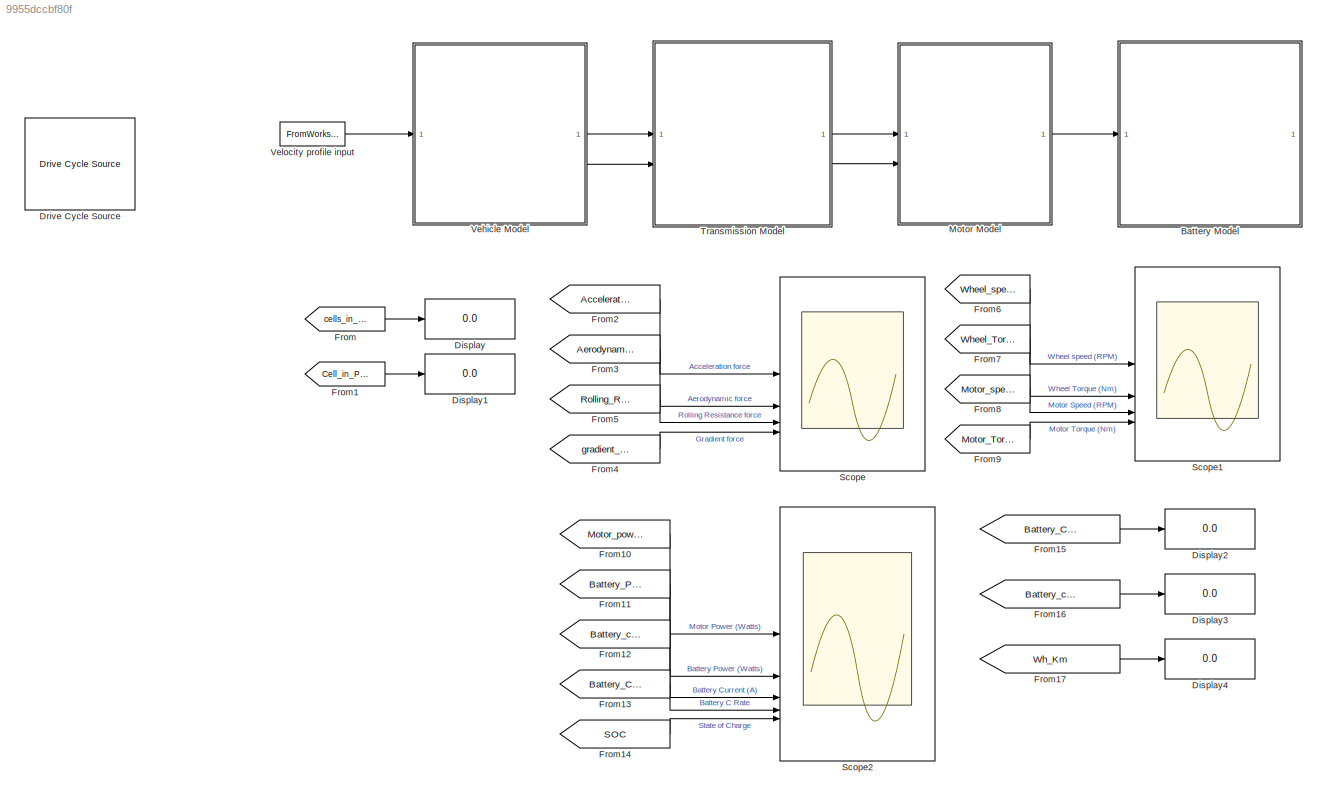
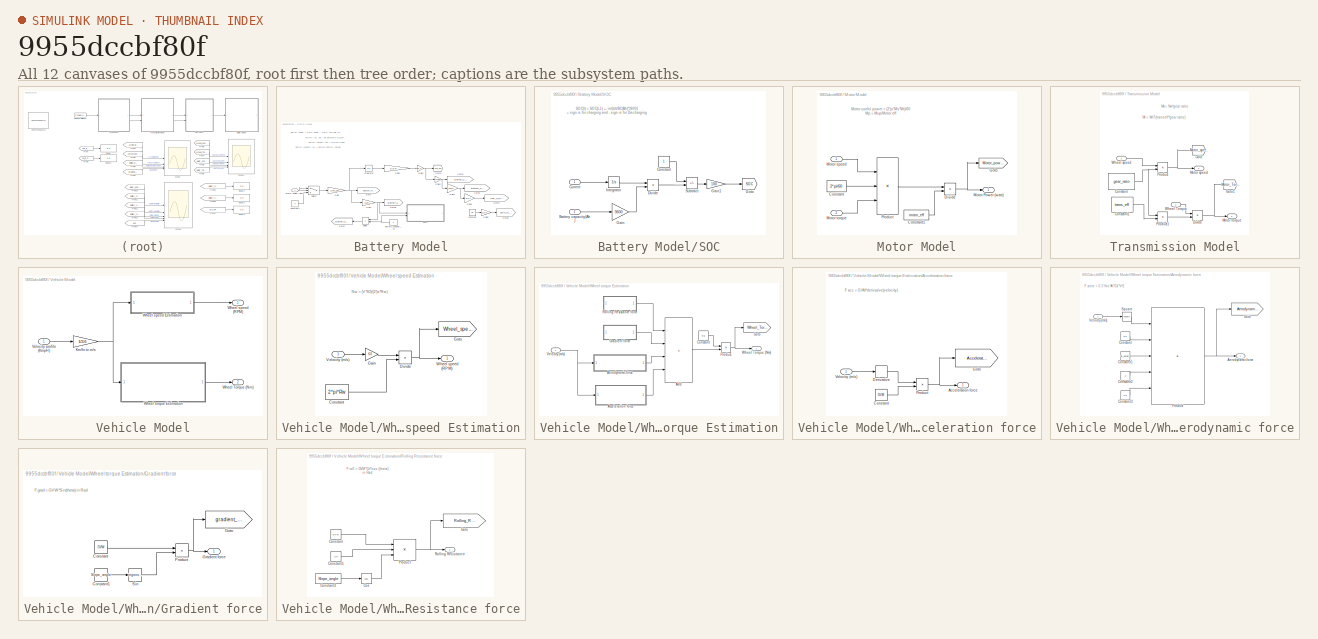
[diagram: thumbnail index - all 12 canvases of the model, root first then tree order]
MODEL slx_9955dccbf80f
KIND model
CONFIG AbsTol = auto
CONFIG EnableMultiTasking = off
CONFIG FixedStep = auto
CONFIG MaxStep = auto
CONFIG MinStep = auto
CONFIG RelTol = 1e-3
CONFIG SampleTimeConstraint = Unconstrained
CONFIG SolverName = VariableStepAuto
CONFIG StartTime = 0
CONFIG StopTime = 1372
WORKSPACE source: MATLAB code (in-file)
WORKSPACE Rw = 0.254
WORKSPACE GVM = 330
WORKSPACE GVW = GVM*9.81  (= 3237.3)
WORKSPACE Crf = 0.015
WORKSPACE Slope_angle = 0
WORKSPACE Af = 1.1
WORKSPACE Cd = 0.4
WORKSPACE gear_ratio = 6
WORKSPACE trans_eff = 0.9
WORKSPACE motor_eff = 0.9
WORKSPACE mc_eff = 0.95
WORKSPACE Bv = 72
WORKSPACE Cv = 3.6
WORKSPACE Cc = 31
WORKSPACE lap_distance = 17.77
WORKSPACE range = 20
WORKSPACE time = 60
WORKSPACE air_density = 1.225
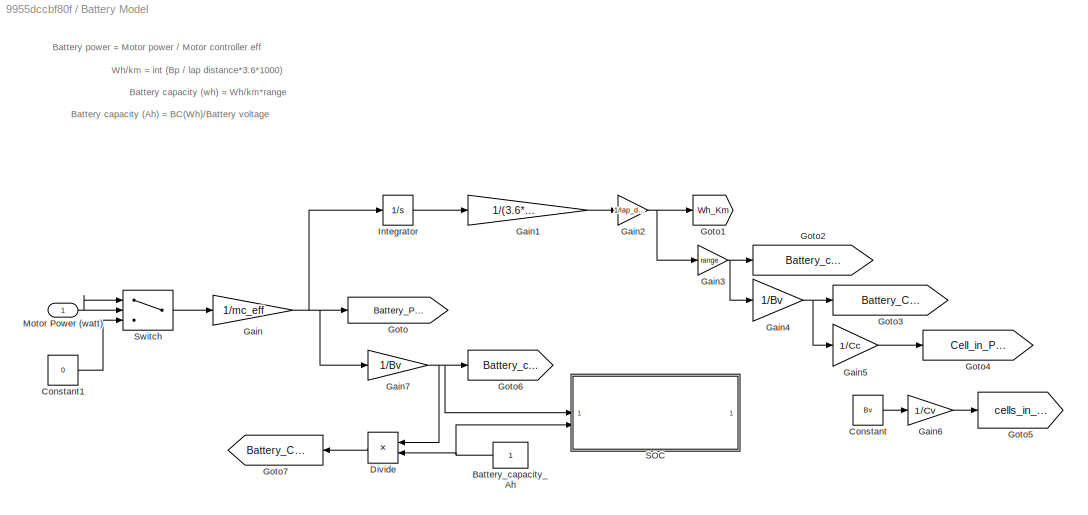
BLOCK [SubSystem] Battery Model
BLOCK [Constant] Battery Model/Battery_capacity_Ah
BLOCK [Constant] Battery Model/Constant
  Value = Bv
BLOCK [Constant] Battery Model/Constant1
  Value = 0
BLOCK [Product] Battery Model/Divide
  Inputs = */
BLOCK [Gain] Battery Model/Gain
  Gain = 1/mc_eff
BLOCK [Gain] Battery Model/Gain1
  Gain = 1/(3.6*1000)
BLOCK [Gain] Battery Model/Gain2
  Gain = 1/lap_distance
BLOCK [Gain] Battery Model/Gain3
  Gain = range
BLOCK [Gain] Battery Model/Gain4
  Gain = 1/Bv
BLOCK [Gain] Battery Model/Gain5
  Gain = 1/Cc
BLOCK [Gain] Battery Model/Gain6
  Gain = 1/Cv
BLOCK [Gain] Battery Model/Gain7
  Gain = 1/Bv
BLOCK [Goto] Battery Model/Goto
  GotoTag = Battery_Power
  TagVisibility = global
BLOCK [Goto] Battery Model/Goto1
  GotoTag = Wh_Km
  TagVisibility = global
BLOCK [Goto] Battery Model/Goto2
  GotoTag = Battery_capacity_Wh
  TagVisibility = global
BLOCK [Goto] Battery Model/Goto3
  GotoTag = Battery_Capacity_Ah
  TagVisibility = global
BLOCK [Goto] Battery Model/Goto4
  GotoTag = Cell_in_Parallel
  TagVisibility = global
BLOCK [Goto] Battery Model/Goto5
  GotoTag = cells_in_series
  TagVisibility = global
BLOCK [Goto] Battery Model/Goto6
  GotoTag = Battery_current
  TagVisibility = global
BLOCK [Goto] Battery Model/Goto7
  GotoTag = Battery_C_Rate
  TagVisibility = global
BLOCK [Integrator] Battery Model/Integrator
BLOCK [Inport] Battery Model/Motor Power (watt)
BLOCK [SubSystem] Battery Model/SOC
BLOCK [Inport] Battery Model/SOC/Battery capacity(Ah)
  Port = 2
BLOCK [Constant] Battery Model/SOC/Constant
BLOCK [Inport] Battery Model/SOC/Current
BLOCK [Product] Battery Model/SOC/Divide
  Inputs = */
BLOCK [Gain] Battery Model/SOC/Gain
  Gain = 3600
BLOCK [Gain] Battery Model/SOC/Gain1
  Gain = 100
BLOCK [Goto] Battery Model/SOC/Goto
  GotoTag = SOC
  TagVisibility = global
BLOCK [Integrator] Battery Model/SOC/Integrator
BLOCK [Sum] Battery Model/SOC/Subtract
  IconShape = rectangular
  Inputs = +-
BLOCK [Switch] Battery Model/Switch
  Criteria = u2 > Threshold
  InputSameDT = off
  SaturateOnIntegerOverflow = off
BLOCK [Display] Display
  Decimation = 2
BLOCK [Display] Display1
  Decimation = 2
BLOCK [Display] Display2
  Decimation = 2
BLOCK [Display] Display3
  Decimation = 2
BLOCK [Display] Display4
  Decimation = 2
BLOCK [Reference] Drive Cycle Source  REF=autolibshared/Drive Cycle Source
  AttributesFormatString = %<cycleVar> (%<tfinal>)
  LibrarySourceBlock = vdynlib/Vehicle Scenarios/Drive Cycle and Maneuvers/Drive Cycle Source
  SourceBlock = autolibshared/Drive Cycle Source
  SourceType = Drive Cycle Source
BLOCK [From] From
  GotoTag = cells_in_series
  TagVisibility = global
BLOCK [From] From1
  GotoTag = Cell_in_Parallel
  TagVisibility = global
BLOCK [From] From10
  GotoTag = Motor_power
  TagVisibility = global
BLOCK [From] From11
  GotoTag = Battery_Power
  TagVisibility = global
BLOCK [From] From12
  GotoTag = Battery_current
  TagVisibility = global
BLOCK [From] From13
  GotoTag = Battery_C_Rate
  TagVisibility = global
BLOCK [From] From14
  GotoTag = SOC
  TagVisibility = global
BLOCK [From] From15
  GotoTag = Battery_Capacity_Ah
  TagVisibility = global
BLOCK [From] From16
  GotoTag = Battery_capacity_Wh
  TagVisibility = global
BLOCK [From] From17
  GotoTag = Wh_Km
  TagVisibility = global
BLOCK [From] From2
  GotoTag = Acceleration_force
  TagVisibility = global
BLOCK [From] From3
  GotoTag = Aerodynamic_force
  TagVisibility = global
BLOCK [From] From4
  GotoTag = gradient_force
  TagVisibility = global
BLOCK [From] From5
  GotoTag = Rolling_Resistance
  TagVisibility = global
BLOCK [From] From6
  GotoTag = Wheel_speed
  TagVisibility = global
BLOCK [From] From7
  GotoTag = Wheel_Torque
  TagVisibility = global
BLOCK [From] From8
  GotoTag = Motor_speed
  TagVisibility = global
BLOCK [From] From9
  GotoTag = Motor_Torque
  TagVisibility = global
BLOCK [SubSystem] Motor Model
BLOCK [Constant] Motor Model/Constant
  Value = 2*pi/60
BLOCK [Constant] Motor Model/Constant1
  Value = motor_eff
BLOCK [Product] Motor Model/Divide
  Inputs = */
BLOCK [Goto] Motor Model/Goto
  GotoTag = Motor_power
  TagVisibility = global
BLOCK [Outport] Motor Model/Motor Power (watt)
BLOCK [Inport] Motor Model/Motor speed
BLOCK [Inport] Motor Model/Motor torque
  Port = 2
BLOCK [Product] Motor Model/Product
  Inputs = 3
BLOCK [Scope] Scope
  Floating = off
  NumInputPorts = 4
  ScopeSpecificationString = Simulink.scopes.TimeScopeBlockCfg('CurrentConfiguration', extmgr.ConfigurationSet(extmgr.Configuration('Core','General UI',true),extmgr.Configuration('Core','Source UI',true),extmgr.Configuration('Sources','WiredSimulink',true),extmgr.Configuration('Visuals','Time Domain',true,'SerializedDisplays',{struct('MinYLimReal','-378.125','MaxYLimReal','378.125','YLabelReal','','MinYLimMag',' 0.00000','Max...<+3351ch>
BLOCK [Scope] Scope1
  Floating = off
  NumInputPorts = 4
  ScopeSpecificationString = Simulink.scopes.TimeScopeBlockCfg('CurrentConfiguration', extmgr.ConfigurationSet(extmgr.Configuration('Core','General UI',true),extmgr.Configuration('Core','Source UI',true),extmgr.Configuration('Sources','WiredSimulink',true,'DataLoggingVariableName','ScopeData1'),extmgr.Configuration('Visuals','Time Domain',true,'SerializedDisplays',{struct('MinYLimReal','-10','MaxYLimReal','10','YLabelReal',''...<+3450ch>
BLOCK [Scope] Scope2
  Floating = off
  NumInputPorts = 5
  ScopeSpecificationString = Simulink.scopes.TimeScopeBlockCfg('CurrentConfiguration', extmgr.ConfigurationSet(extmgr.Configuration('Core','General UI',true),extmgr.Configuration('Core','Source UI',true),extmgr.Configuration('Sources','WiredSimulink',true,'DataLoggingVariableName','ScopeData2'),extmgr.Configuration('Visuals','Time Domain',true,'SerializedDisplays',{struct('MinYLimReal','-3120.5989','MaxYLimReal','4806.34832',...<+4835ch>
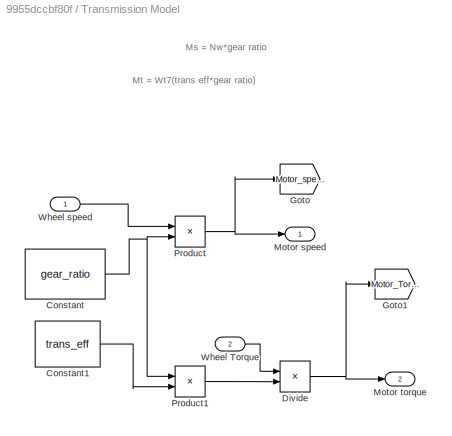
BLOCK [SubSystem] Transmission Model
BLOCK [Constant] Transmission Model/Constant
  Value = gear_ratio
BLOCK [Constant] Transmission Model/Constant1
  Value = trans_eff
BLOCK [Product] Transmission Model/Divide
  Inputs = */
BLOCK [Goto] Transmission Model/Goto
  GotoTag = Motor_speed
  TagVisibility = global
BLOCK [Goto] Transmission Model/Goto1
  GotoTag = Motor_Torque
  TagVisibility = global
BLOCK [Outport] Transmission Model/Motor speed
BLOCK [Outport] Transmission Model/Motor torque 
  Port = 2
BLOCK [Product] Transmission Model/Product
BLOCK [Product] Transmission Model/Product1
BLOCK [Inport] Transmission Model/Wheel Torque
  Port = 2
BLOCK [Inport] Transmission Model/Wheel speed
BLOCK [SubSystem] Vehicle Model
BLOCK [Gain] Vehicle Model/Km//hr to m//s
  Gain = 1/3.6
BLOCK [Inport] Vehicle Model/Velocity profile (KmpH)
BLOCK [Outport] Vehicle Model/Wheel Torque (Nm)
  Port = 2
BLOCK [Outport] Vehicle Model/Wheel speed (RPM)
BLOCK [SubSystem] Vehicle Model/Wheel speed Estimation
BLOCK [Constant] Vehicle Model/Wheel speed Estimation/Constant
  Value = 2*pi*Rw
BLOCK [Product] Vehicle Model/Wheel speed Estimation/Divide
  Inputs = */
BLOCK [Gain] Vehicle Model/Wheel speed Estimation/Gain
  Gain = 60
BLOCK [Goto] Vehicle Model/Wheel speed Estimation/Goto
  GotoTag = Wheel_speed
  TagVisibility = global
BLOCK [Inport] Vehicle Model/Wheel speed Estimation/Velocity (m//s)
BLOCK [Outport] Vehicle Model/Wheel speed Estimation/Wheel speed (RPM)
BLOCK [SubSystem] Vehicle Model/Wheel torque Estimation
BLOCK [SubSystem] Vehicle Model/Wheel torque Estimation/Acceleration force
BLOCK [Outport] Vehicle Model/Wheel torque Estimation/Acceleration force/Acceleration force
BLOCK [Constant] Vehicle Model/Wheel torque Estimation/Acceleration force/Constant
  Value = GVM
BLOCK [Derivative] Vehicle Model/Wheel torque Estimation/Acceleration force/Derivative
BLOCK [Goto] Vehicle Model/Wheel torque Estimation/Acceleration force/Goto
  GotoTag = Acceleration_force
  TagVisibility = global
BLOCK [Product] Vehicle Model/Wheel torque Estimation/Acceleration force/Product
BLOCK [Inport] Vehicle Model/Wheel torque Estimation/Acceleration force/Velocity (m//s)
BLOCK [Sum] Vehicle Model/Wheel torque Estimation/Add
  IconShape = rectangular
  Inputs = ++++
BLOCK [SubSystem] Vehicle Model/Wheel torque Estimation/Aerodynamic force
BLOCK [Outport] Vehicle Model/Wheel torque Estimation/Aerodynamic force/Aerodynamic force
BLOCK [Constant] Vehicle Model/Wheel torque Estimation/Aerodynamic force/Constant
  Value = 0.5
BLOCK [Constant] Vehicle Model/Wheel torque Estimation/Aerodynamic force/Constant1
  Value = air_density
BLOCK [Constant] Vehicle Model/Wheel torque Estimation/Aerodynamic force/Constant2
  Value = Af
BLOCK [Constant] Vehicle Model/Wheel torque Estimation/Aerodynamic force/Constant3
  Value = Cd
BLOCK [Goto] Vehicle Model/Wheel torque Estimation/Aerodynamic force/Goto
  GotoTag = Aerodynamic_force
  TagVisibility = global
BLOCK [Product] Vehicle Model/Wheel torque Estimation/Aerodynamic force/Product
  Inputs = 5
BLOCK [Math] Vehicle Model/Wheel torque Estimation/Aerodynamic force/Square
  Operator = square
BLOCK [Inport] Vehicle Model/Wheel torque Estimation/Aerodynamic force/Velocity (m//s)
BLOCK [Constant] Vehicle Model/Wheel torque Estimation/Constant
  Value = Rw
BLOCK [Goto] Vehicle Model/Wheel torque Estimation/Goto
  GotoTag = Wheel_Torque
  TagVisibility = global
BLOCK [SubSystem] Vehicle Model/Wheel torque Estimation/Gradient force
BLOCK [Constant] Vehicle Model/Wheel torque Estimation/Gradient force/Constant
  Value = GVW
BLOCK [Constant] Vehicle Model/Wheel torque Estimation/Gradient force/Constant1
  Value = Slope_angle
BLOCK [Goto] Vehicle Model/Wheel torque Estimation/Gradient force/Goto
  GotoTag = gradient_force
  TagVisibility = global
BLOCK [Outport] Vehicle Model/Wheel torque Estimation/Gradient force/Gradient force
BLOCK [Product] Vehicle Model/Wheel torque Estimation/Gradient force/Product
BLOCK [Trigonometry] Vehicle Model/Wheel torque Estimation/Gradient force/Sin
BLOCK [Product] Vehicle Model/Wheel torque Estimation/Product
BLOCK [SubSystem] Vehicle Model/Wheel torque Estimation/Rolling Resistance force
BLOCK [Constant] Vehicle Model/Wheel torque Estimation/Rolling Resistance force/Constant
  Value = GVW
BLOCK [Constant] Vehicle Model/Wheel torque Estimation/Rolling Resistance force/Constant1
  Value = Crf
BLOCK [Constant] Vehicle Model/Wheel torque Estimation/Rolling Resistance force/Constant2
  Value = Slope_angle
BLOCK [Trigonometry] Vehicle Model/Wheel torque Estimation/Rolling Resistance force/Cos
  Operator = cos
BLOCK [Goto] Vehicle Model/Wheel torque Estimation/Rolling Resistance force/Goto
  GotoTag = Rolling_Resistance
  TagVisibility = global
BLOCK [Product] Vehicle Model/Wheel torque Estimation/Rolling Resistance force/Product
  Inputs = 3
BLOCK [Outport] Vehicle Model/Wheel torque Estimation/Rolling Resistance force/Rolling Resistance
BLOCK [Inport] Vehicle Model/Wheel torque Estimation/Velocity (m//s)
BLOCK [Outport] Vehicle Model/Wheel torque Estimation/Wheel Torque (Nm)
BLOCK [FromWorkspace] Velocity profile input
  VariableName = UDDSdata
ANNOTATION Battery Model: Battery capacity (Ah) = BC(Wh)/Battery voltage
ANNOTATION Battery Model: Battery capacity (wh) = Wh/km*range
ANNOTATION Battery Model: Battery power = Motor power / Motor controller eff
ANNOTATION Battery Model: Wh/km = int (Bp / lap distance*3.6*1000)
ANNOTATION Battery Model/SOC: SOC(t) = SOC(t-1) +- int(Idt/BC(Ah)*3600) + sign is for charging and - sign is for Discharging
ANNOTATION Motor Model: Motor useful power = (2*pi*Ms*Mt)/60 Mp = Mup/Motor eff
ANNOTATION Transmission Model: Ms = Nw*gear ratio
ANNOTATION Transmission Model: Mt = Wt7(trans eff*gear ratio)
ANNOTATION Vehicle Model/Wheel speed Estimation: Nw = (V*60)/(2*pi*Rw)
ANNOTATION Vehicle Model/Wheel torque Estimation/Acceleration force: F acc = GVM*derivative(velocity)
ANNOTATION Vehicle Model/Wheel torque Estimation/Aerodynamic force: F aero = 0.5*rho*Af*Cd*V^2
ANNOTATION Vehicle Model/Wheel torque Estimation/Gradient force: F grad = GVW*Sin(theta) in Rad
ANNOTATION Vehicle Model/Wheel torque Estimation/Rolling Resistance force: F roll = GVM*Crf*cos (theta) in Rad
NET Battery Model/Battery_capacity_Ah:1 -> Battery Model/Divide:2, Battery Model/SOC:2
LINE Battery Model/Constant1:1 -> Battery Model/Switch:3
LINE Battery Model/Constant:1 -> Battery Model/Gain6:1
LINE Battery Model/Divide:1 -> Battery Model/Goto7:1
LINE Battery Model/Gain1:1 -> Battery Model/Gain2:1
NET Battery Model/Gain2:1 -> Battery Model/Gain3:1, Battery Model/Goto1:1
NET Battery Model/Gain3:1 -> Battery Model/Gain4:1, Battery Model/Goto2:1
NET Battery Model/Gain4:1 -> Battery Model/Gain5:1, Battery Model/Goto3:1
LINE Battery Model/Gain5:1 -> Battery Model/Goto4:1
LINE Battery Model/Gain6:1 -> Battery Model/Goto5:1
NET Battery Model/Gain7:1 -> Battery Model/Divide:1, Battery Model/Goto6:1, Battery Model/SOC:1
NET Battery Model/Gain:1 -> Battery Model/Gain7:1, Battery Model/Goto:1, Battery Model/Integrator:1
LINE Battery Model/Integrator:1 -> Battery Model/Gain1:1
NET Battery Model/Motor Power (watt):1 -> Battery Model/Switch:1, Battery Model/Switch:2
LINE Battery Model/SOC/Battery capacity(Ah):1 -> Battery Model/SOC/Gain:1
LINE Battery Model/SOC/Constant:1 -> Battery Model/SOC/Subtract:1
LINE Battery Model/SOC/Current:1 -> Battery Model/SOC/Integrator:1
LINE Battery Model/SOC/Divide:1 -> Battery Model/SOC/Subtract:2
LINE Battery Model/SOC/Gain1:1 -> Battery Model/SOC/Goto:1
LINE Battery Model/SOC/Gain:1 -> Battery Model/SOC/Divide:2
LINE Battery Model/SOC/Integrator:1 -> Battery Model/SOC/Divide:1
LINE Battery Model/SOC/Subtract:1 -> Battery Model/SOC/Gain1:1
LINE Battery Model/Switch:1 -> Battery Model/Gain:1
LINE From10:1 -> Scope2:1
LINE From11:1 -> Scope2:2
LINE From12:1 -> Scope2:3
LINE From13:1 -> Scope2:4
LINE From14:1 -> Scope2:5
LINE From15:1 -> Display2:1
LINE From16:1 -> Display3:1
LINE From17:1 -> Display4:1
LINE From1:1 -> Display1:1
LINE From2:1 -> Scope:1
LINE From3:1 -> Scope:2
LINE From4:1 -> Scope:4
LINE From5:1 -> Scope:3
LINE From6:1 -> Scope1:1
LINE From7:1 -> Scope1:2
LINE From8:1 -> Scope1:3
LINE From9:1 -> Scope1:4
LINE From:1 -> Display:1
LINE Motor Model/Constant1:1 -> Motor Model/Divide:2
LINE Motor Model/Constant:1 -> Motor Model/Product:2
NET Motor Model/Divide:1 -> Motor Model/Goto:1, Motor Model/Motor Power (watt):1
LINE Motor Model/Motor speed:1 -> Motor Model/Product:1
LINE Motor Model/Motor torque:1 -> Motor Model/Product:3
LINE Motor Model/Product:1 -> Motor Model/Divide:1
LINE Motor Model:1 -> Battery Model:1
LINE Transmission Model/Constant1:1 -> Transmission Model/Product1:2
NET Transmission Model/Constant:1 -> Transmission Model/Product1:1, Transmission Model/Product:2
NET Transmission Model/Divide:1 -> Transmission Model/Goto1:1, Transmission Model/Motor torque :1
LINE Transmission Model/Product1:1 -> Transmission Model/Divide:2
NET Transmission Model/Product:1 -> Transmission Model/Goto:1, Transmission Model/Motor speed:1
LINE Transmission Model/Wheel Torque:1 -> Transmission Model/Divide:1
LINE Transmission Model/Wheel speed:1 -> Transmission Model/Product:1
LINE Transmission Model:1 -> Motor Model:1
LINE Transmission Model:2 -> Motor Model:2
NET Vehicle Model/Km//hr to m//s:1 -> Vehicle Model/Wheel speed Estimation:1, Vehicle Model/Wheel torque Estimation:1
LINE Vehicle Model/Velocity profile (KmpH):1 -> Vehicle Model/Km//hr to m//s:1
LINE Vehicle Model/Wheel speed Estimation/Constant:1 -> Vehicle Model/Wheel speed Estimation/Divide:2
NET Vehicle Model/Wheel speed Estimation/Divide:1 -> Vehicle Model/Wheel speed Estimation/Goto:1, Vehicle Model/Wheel speed Estimation/Wheel speed (RPM):1
LINE Vehicle Model/Wheel speed Estimation/Gain:1 -> Vehicle Model/Wheel speed Estimation/Divide:1
LINE Vehicle Model/Wheel speed Estimation/Velocity (m//s):1 -> Vehicle Model/Wheel speed Estimation/Gain:1
LINE Vehicle Model/Wheel speed Estimation:1 -> Vehicle Model/Wheel speed (RPM):1
LINE Vehicle Model/Wheel torque Estimation/Acceleration force/Constant:1 -> Vehicle Model/Wheel torque Estimation/Acceleration force/Product:2
LINE Vehicle Model/Wheel torque Estimation/Acceleration force/Derivative:1 -> Vehicle Model/Wheel torque Estimation/Acceleration force/Product:1
NET Vehicle Model/Wheel torque Estimation/Acceleration force/Product:1 -> Vehicle Model/Wheel torque Estimation/Acceleration force/Acceleration force:1, Vehicle Model/Wheel torque Estimation/Acceleration force/Goto:1
LINE Vehicle Model/Wheel torque Estimation/Acceleration force/Velocity (m//s):1 -> Vehicle Model/Wheel torque Estimation/Acceleration force/Derivative:1
LINE Vehicle Model/Wheel torque Estimation/Acceleration force:1 -> Vehicle Model/Wheel torque Estimation/Add:4
LINE Vehicle Model/Wheel torque Estimation/Add:1 -> Vehicle Model/Wheel torque Estimation/Product:2
LINE Vehicle Model/Wheel torque Estimation/Aerodynamic force/Constant1:1 -> Vehicle Model/Wheel torque Estimation/Aerodynamic force/Product:3
LINE Vehicle Model/Wheel torque Estimation/Aerodynamic force/Constant2:1 -> Vehicle Model/Wheel torque Estimation/Aerodynamic force/Product:4
LINE Vehicle Model/Wheel torque Estimation/Aerodynamic force/Constant3:1 -> Vehicle Model/Wheel torque Estimation/Aerodynamic force/Product:5
LINE Vehicle Model/Wheel torque Estimation/Aerodynamic force/Constant:1 -> Vehicle Model/Wheel torque Estimation/Aerodynamic force/Product:2
NET Vehicle Model/Wheel torque Estimation/Aerodynamic force/Product:1 -> Vehicle Model/Wheel torque Estimation/Aerodynamic force/Aerodynamic force:1, Vehicle Model/Wheel torque Estimation/Aerodynamic force/Goto:1
LINE Vehicle Model/Wheel torque Estimation/Aerodynamic force/Square:1 -> Vehicle Model/Wheel torque Estimation/Aerodynamic force/Product:1
LINE Vehicle Model/Wheel torque Estimation/Aerodynamic force/Velocity (m//s):1 -> Vehicle Model/Wheel torque Estimation/Aerodynamic force/Square:1
LINE Vehicle Model/Wheel torque Estimation/Aerodynamic force:1 -> Vehicle Model/Wheel torque Estimation/Add:3
LINE Vehicle Model/Wheel torque Estimation/Constant:1 -> Vehicle Model/Wheel torque Estimation/Product:1
LINE Vehicle Model/Wheel torque Estimation/Gradient force/Constant1:1 -> Vehicle Model/Wheel torque Estimation/Gradient force/Sin:1
LINE Vehicle Model/Wheel torque Estimation/Gradient force/Constant:1 -> Vehicle Model/Wheel torque Estimation/Gradient force/Product:1
NET Vehicle Model/Wheel torque Estimation/Gradient force/Product:1 -> Vehicle Model/Wheel torque Estimation/Gradient force/Goto:1, Vehicle Model/Wheel torque Estimation/Gradient force/Gradient force:1
LINE Vehicle Model/Wheel torque Estimation/Gradient force/Sin:1 -> Vehicle Model/Wheel torque Estimation/Gradient force/Product:2
LINE Vehicle Model/Wheel torque Estimation/Gradient force:1 -> Vehicle Model/Wheel torque Estimation/Add:2
NET Vehicle Model/Wheel torque Estimation/Product:1 -> Vehicle Model/Wheel torque Estimation/Goto:1, Vehicle Model/Wheel torque Estimation/Wheel Torque (Nm):1
LINE Vehicle Model/Wheel torque Estimation/Rolling Resistance force/Constant1:1 -> Vehicle Model/Wheel torque Estimation/Rolling Resistance force/Product:2
LINE Vehicle Model/Wheel torque Estimation/Rolling Resistance force/Constant2:1 -> Vehicle Model/Wheel torque Estimation/Rolling Resistance force/Cos:1
LINE Vehicle Model/Wheel torque Estimation/Rolling Resistance force/Constant:1 -> Vehicle Model/Wheel torque Estimation/Rolling Resistance force/Product:1
LINE Vehicle Model/Wheel torque Estimation/Rolling Resistance force/Cos:1 -> Vehicle Model/Wheel torque Estimation/Rolling Resistance force/Product:3
NET Vehicle Model/Wheel torque Estimation/Rolling Resistance force/Product:1 -> Vehicle Model/Wheel torque Estimation/Rolling Resistance force/Goto:1, Vehicle Model/Wheel torque Estimation/Rolling Resistance force/Rolling Resistance:1
LINE Vehicle Model/Wheel torque Estimation/Rolling Resistance force:1 -> Vehicle Model/Wheel torque Estimation/Add:1
NET Vehicle Model/Wheel torque Estimation/Velocity (m//s):1 -> Vehicle Model/Wheel torque Estimation/Acceleration force:1, Vehicle Model/Wheel torque Estimation/Aerodynamic force:1
LINE Vehicle Model/Wheel torque Estimation:1 -> Vehicle Model/Wheel Torque (Nm):1
LINE Vehicle Model:1 -> Transmission Model:1
LINE Vehicle Model:2 -> Transmission Model:2
LINE Velocity profile input:1 -> Vehicle Model:1
note: NET lines group one-source signal fan-out (src -> all destinations, sorted); 1:1 wires keep LINE
